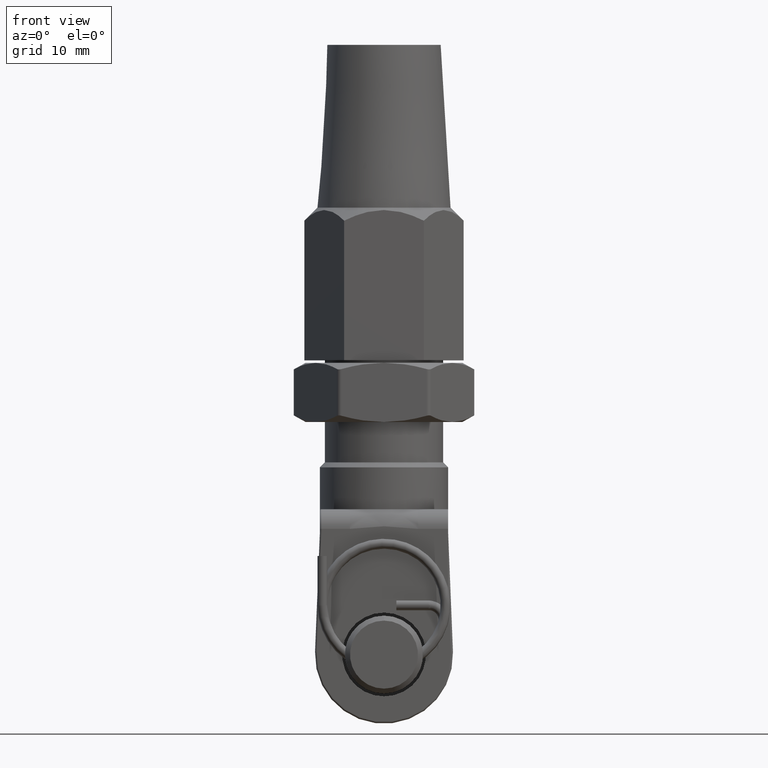
[diagram: clean part render]
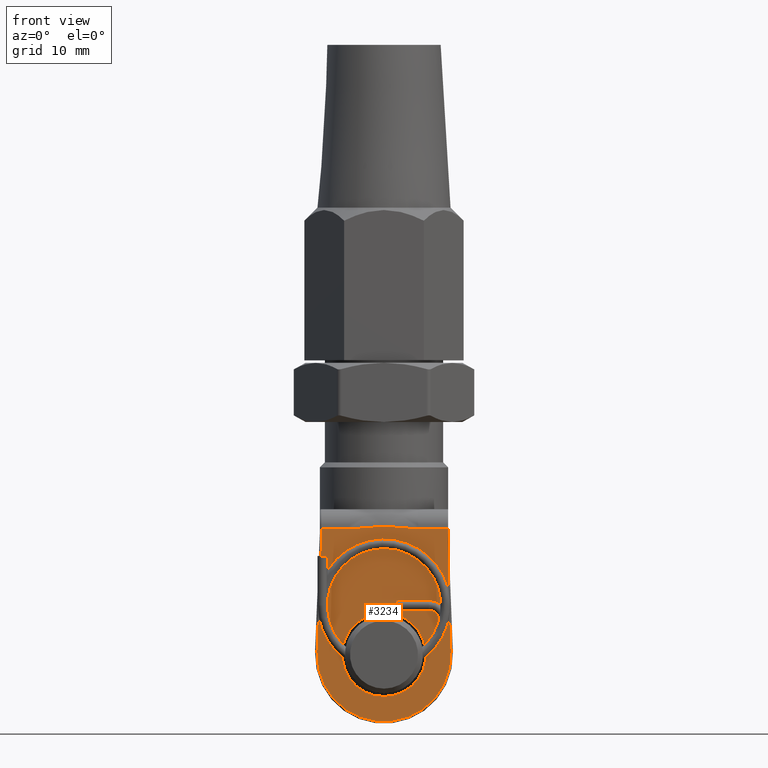
[diagram: same view with one face highlighted and labeled with its STEP entity id]
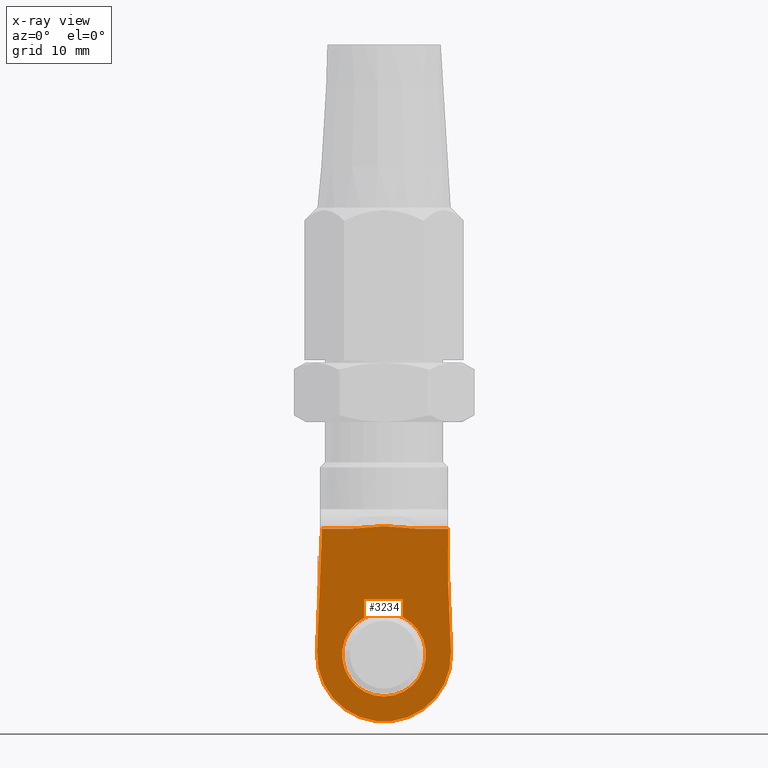
[diagram: x-ray of the same camera — body ghosted, the highlighted face saturated]
A machine part, front view. The second image highlights one B-rep face of the part: STEP entity #3234.
The next image is the same camera in x-ray: the body ghosted, the highlighted face saturated — about 0% of this face is hidden behind the body in this view.
In plain terms, the highlighted planar face has unit normal (0, 1, 0).
Its self-contained STEP definition (entity closure, byte-faithful):
#96 = EDGE_CURVE ( 'NONE', #3309, #10315, #11575, .T. ) ;
#780 = VERTEX_POINT ( 'NONE', #19953 ) ;
#883 = EDGE_CURVE ( 'NONE', #780, #5489, #11555, .T. ) ;
#902 = CARTESIAN_POINT ( 'NONE',  ( -6.500000000000000900, -7.500000000000000000, -6.250000000000000000 ) ) ;
#1107 = CARTESIAN_POINT ( 'NONE',  ( 0.5838344405832023300, -7.499999999999999100, -5.996194909142841000 ) ) ;
#1270 = ORIENTED_EDGE ( 'NONE', *, *, #5805, .T. ) ;
#1418 = CIRCLE ( 'NONE', #6972, 4.250000000000000000 ) ;
#1435 = VECTOR ( 'NONE', #5217, 999.9999999999998900 ) ;
#1521 = EDGE_CURVE ( 'NONE', #14001, #19121, #6102, .T. ) ;
#1683 = FACE_BOUND ( 'NONE', #16187, .T. ) ;
#1791 = DIRECTION ( 'NONE',  ( 0.0000000000000000000, 0.0000000000000000000, -1.000000000000000000 ) ) ;
#2374 = EDGE_CURVE ( 'NONE', #7697, #5701, #18639, .T. ) ;
#2872 = CARTESIAN_POINT ( 'NONE',  ( -6.500000000000000900, -7.500000000000000000, -6.250000000000000000 ) ) ;
#2876 = CARTESIAN_POINT ( 'NONE',  ( -0.5747379081137910000, -7.500000000000000900, -5.995622758208645200 ) ) ;
#3037 = DIRECTION ( 'NONE',  ( -1.000000000000000000, 0.0000000000000000000, -0.0000000000000000000 ) ) ;
#3234 = ADVANCED_FACE ( 'NONE', ( #1683, #4698 ), #22521, .F. ) ;
#3309 = VERTEX_POINT ( 'NONE', #17664 ) ;
#3476 = B_SPLINE_CURVE_WITH_KNOTS ( 'NONE', 3,
 ( #6098, #11358, #4273, #6031, #11592, #1107, #18521, #7929, #2876, #4417, #20102, #18209, #7775, #19958 ),
 .UNSPECIFIED., .F., .F.,
 ( 4, 2, 2, 2, 2, 2, 4 ),
 ( 0.0000000000000000000, 0.001734807618534754100, 0.002602211427802130600, 0.003469615237069507400, 0.004337019046336883200, 0.005204422855604259500, 0.006939230474139013000 ),
 .UNSPECIFIED. ) ;
#3481 = VERTEX_POINT ( 'NONE', #22320 ) ;
#3598 = EDGE_LOOP ( 'NONE', ( #4181, #13085, #7812, #1270, #9551, #4665, #17455, #19700 ) ) ;
#4008 = AXIS2_PLACEMENT_3D ( 'NONE', #5955, #13129, #4426 ) ;
#4181 = ORIENTED_EDGE ( 'NONE', *, *, #1521, .T. ) ;
#4207 = CARTESIAN_POINT ( 'NONE',  ( -6.794441496998417500, -7.500000000000000000, -18.72510957843917400 ) ) ;
#4273 = CARTESIAN_POINT ( 'NONE',  ( 2.309648038983550300, -7.500000000000000900, -6.178981740478986000 ) ) ;
#4417 = CARTESIAN_POINT ( 'NONE',  ( -1.152910140143945900, -7.499999999999999100, -6.042907434147531700 ) ) ;
#4426 = DIRECTION ( 'NONE',  ( 0.0000000000000000000, 0.0000000000000000000, 1.000000000000000000 ) ) ;
#4665 = ORIENTED_EDGE ( 'NONE', *, *, #16868, .T. ) ;
#4698 = FACE_OUTER_BOUND ( 'NONE', #3598, .T. ) ;
#4777 = CARTESIAN_POINT ( 'NONE',  ( 0.0000000000000000000, -7.500000000000000000, -18.99999999999999600 ) ) ;
#5217 = DIRECTION ( 'NONE',  ( -0.04042506199423839100, -0.0000000000000000000, 0.9991825730880028500 ) ) ;
#5489 = VERTEX_POINT ( 'NONE', #17773 ) ;
#5701 = VERTEX_POINT ( 'NONE', #21693 ) ;
#5713 = AXIS2_PLACEMENT_3D ( 'NONE', #12188, #19344, #1791 ) ;
#5805 = EDGE_CURVE ( 'NONE', #5701, #780, #3476, .T. ) ;
#5955 = CARTESIAN_POINT ( 'NONE',  ( 1.925929944387235900E-031, -7.500000000000000000, -18.99999999999999600 ) ) ;
#6031 = CARTESIAN_POINT ( 'NONE',  ( 1.447453002263216600, -7.500000000000000000, -6.076836029446451600 ) ) ;
#6098 = CARTESIAN_POINT ( 'NONE',  ( 3.464101615137756600, -7.500000000000000000, -6.250000000000000000 ) ) ;
#6102 = LINE ( 'NONE', #12231, #1435 ) ;
#6631 = DIRECTION ( 'NONE',  ( -0.0000000000000000000, -0.0000000000000000000, -1.000000000000000000 ) ) ;
#6913 = VECTOR ( 'NONE', #3037, 1000.000000000000000 ) ;
#6972 = AXIS2_PLACEMENT_3D ( 'NONE', #4777, #18728, #10052 ) ;
#7183 = VECTOR ( 'NONE', #17798, 1000.000000000000000 ) ;
#7601 = EDGE_CURVE ( 'NONE', #7697, #19121, #19054, .T. ) ;
#7697 = VERTEX_POINT ( 'NONE', #10297 ) ;
#7775 = CARTESIAN_POINT ( 'NONE',  ( -2.881985575059359500, -7.500000000000000000, -6.250000000000000000 ) ) ;
#7812 = ORIENTED_EDGE ( 'NONE', *, *, #2374, .T. ) ;
#7929 = CARTESIAN_POINT ( 'NONE',  ( -0.2841750819516944400, -7.500000000000000900, -5.981886181150886600 ) ) ;
#9439 = CARTESIAN_POINT ( 'NONE',  ( -6.794441496998417500, -7.500000000000000000, -18.72510957843917400 ) ) ;
#9551 = ORIENTED_EDGE ( 'NONE', *, *, #883, .T. ) ;
#10052 = DIRECTION ( 'NONE',  ( 0.0000000000000000000, 0.0000000000000000000, 1.000000000000000000 ) ) ;
#10221 = ORIENTED_EDGE ( 'NONE', *, *, #15347, .T. ) ;
#10297 = CARTESIAN_POINT ( 'NONE',  ( 6.500000000000000900, -7.500000000000000000, -6.250000000000000000 ) ) ;
#10315 = VERTEX_POINT ( 'NONE', #4207 ) ;
#10790 = EDGE_CURVE ( 'NONE', #10315, #14001, #17043, .T. ) ;
#11117 = DIRECTION ( 'NONE',  ( -0.04042506199423839100, 0.0000000000000000000, -0.9991825730880028500 ) ) ;
#11358 = CARTESIAN_POINT ( 'NONE',  ( 2.884219251065384300, -7.500000000000003600, -6.250000000000002700 ) ) ;
#11555 = LINE ( 'NONE', #2872, #6913 ) ;
#11575 = LINE ( 'NONE', #9439, #19720 ) ;
#11592 = CARTESIAN_POINT ( 'NONE',  ( 1.159996653986607800, -7.500000000000000900, -6.043663681457376300 ) ) ;
#11830 = LINE ( 'NONE', #19614, #7183 ) ;
#12188 = CARTESIAN_POINT ( 'NONE',  ( 1.925929944387235900E-031, -7.500000000000000000, -18.99999999999999600 ) ) ;
#12231 = CARTESIAN_POINT ( 'NONE',  ( 6.300163485382400500, -7.500000000000000000, -6.508085012398846700 ) ) ;
#12633 = CARTESIAN_POINT ( 'NONE',  ( 6.794441496998417500, -7.500000000000000000, -18.72510957843917400 ) ) ;
#13085 = ORIENTED_EDGE ( 'NONE', *, *, #7601, .F. ) ;
#13129 = DIRECTION ( 'NONE',  ( -0.0000000000000000000, -1.000000000000000000, -0.0000000000000000000 ) ) ;
#14001 = VERTEX_POINT ( 'NONE', #12633 ) ;
#14394 = VECTOR ( 'NONE', #6631, 1000.000000000000000 ) ;
#15347 = EDGE_CURVE ( 'NONE', #3481, #3481, #1418, .T. ) ;
#16187 = EDGE_LOOP ( 'NONE', ( #10221 ) ) ;
#16525 = CARTESIAN_POINT ( 'NONE',  ( 6.500000000000000900, -7.500000000000000000, -11.44742593167834600 ) ) ;
#16868 = EDGE_CURVE ( 'NONE', #5489, #3309, #11830, .T. ) ;
#17043 = CIRCLE ( 'NONE', #4008, 6.799999999999998900 ) ;
#17455 = ORIENTED_EDGE ( 'NONE', *, *, #96, .T. ) ;
#17664 = CARTESIAN_POINT ( 'NONE',  ( -6.300000000000000700, -7.500000000000000000, -6.504044159101669100 ) ) ;
#17773 = CARTESIAN_POINT ( 'NONE',  ( -6.300000000000000700, -7.500000000000000000, -6.250000000000000000 ) ) ;
#17798 = DIRECTION ( 'NONE',  ( -0.0000000000000000000, 0.0000000000000000000, -1.000000000000000000 ) ) ;
#18209 = CARTESIAN_POINT ( 'NONE',  ( -2.305832171096659600, -7.500000000000000000, -6.178510385641638800 ) ) ;
#18521 = CARTESIAN_POINT ( 'NONE',  ( 0.2951073869630212500, -7.499999999999999100, -5.982218570443762900 ) ) ;
#18639 = LINE ( 'NONE', #902, #18907 ) ;
#18728 = DIRECTION ( 'NONE',  ( 0.0000000000000000000, 1.000000000000000000, 0.0000000000000000000 ) ) ;
#18907 = VECTOR ( 'NONE', #20128, 1000.000000000000000 ) ;
#19054 = LINE ( 'NONE', #22234, #14394 ) ;
#19121 = VERTEX_POINT ( 'NONE', #16525 ) ;
#19344 = DIRECTION ( 'NONE',  ( 0.0000000000000000000, 1.000000000000000000, 0.0000000000000000000 ) ) ;
#19614 = CARTESIAN_POINT ( 'NONE',  ( -6.300000000000000700, -7.500000000000000000, -18.99999999999999600 ) ) ;
#19700 = ORIENTED_EDGE ( 'NONE', *, *, #10790, .T. ) ;
#19720 = VECTOR ( 'NONE', #11117, 999.9999999999998900 ) ;
#19953 = CARTESIAN_POINT ( 'NONE',  ( -3.464101615137756600, -7.500000000000000000, -6.250000000000000000 ) ) ;
#19958 = CARTESIAN_POINT ( 'NONE',  ( -3.464101615137756600, -7.500000000000000000, -6.250000000000000000 ) ) ;
#20102 = CARTESIAN_POINT ( 'NONE',  ( -1.441199303081874600, -7.499999999999999100, -6.076104919713036300 ) ) ;
#20128 = DIRECTION ( 'NONE',  ( -1.000000000000000000, 0.0000000000000000000, -0.0000000000000000000 ) ) ;
#21693 = CARTESIAN_POINT ( 'NONE',  ( 3.464101615137756600, -7.500000000000000000, -6.250000000000000000 ) ) ;
#22234 = CARTESIAN_POINT ( 'NONE',  ( 6.500000000000000900, -7.500000000000000000, -4.250000000000000000 ) ) ;
#22320 = CARTESIAN_POINT ( 'NONE',  ( 0.0000000000000000000, -7.500000000000000000, -14.74999999999999600 ) ) ;
#22521 = PLANE ( 'NONE',  #5713 ) ;